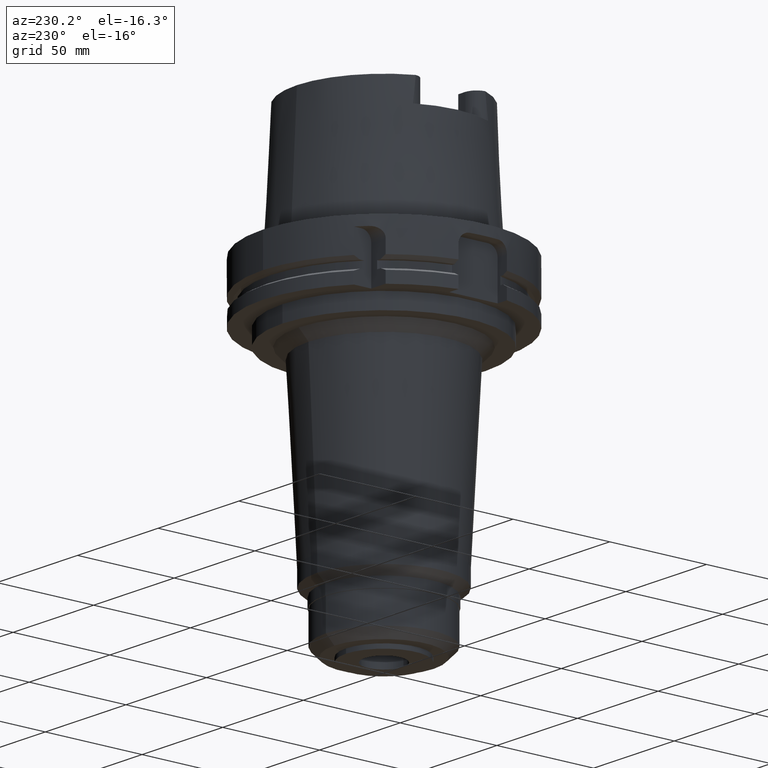
[diagram: clean part render]
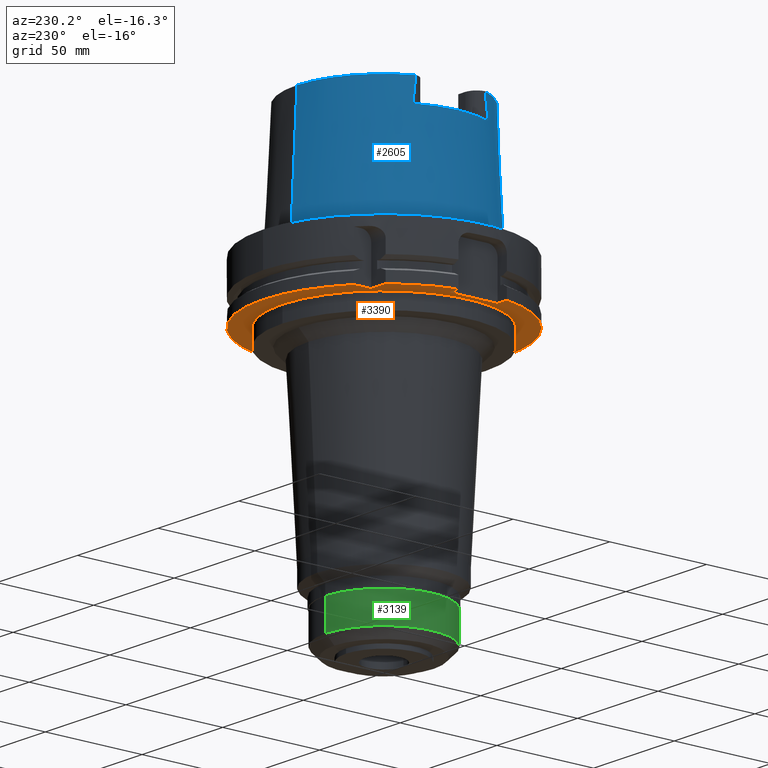
[diagram: same view with three faces highlighted in distinct colors, each labeled with its STEP entity id]
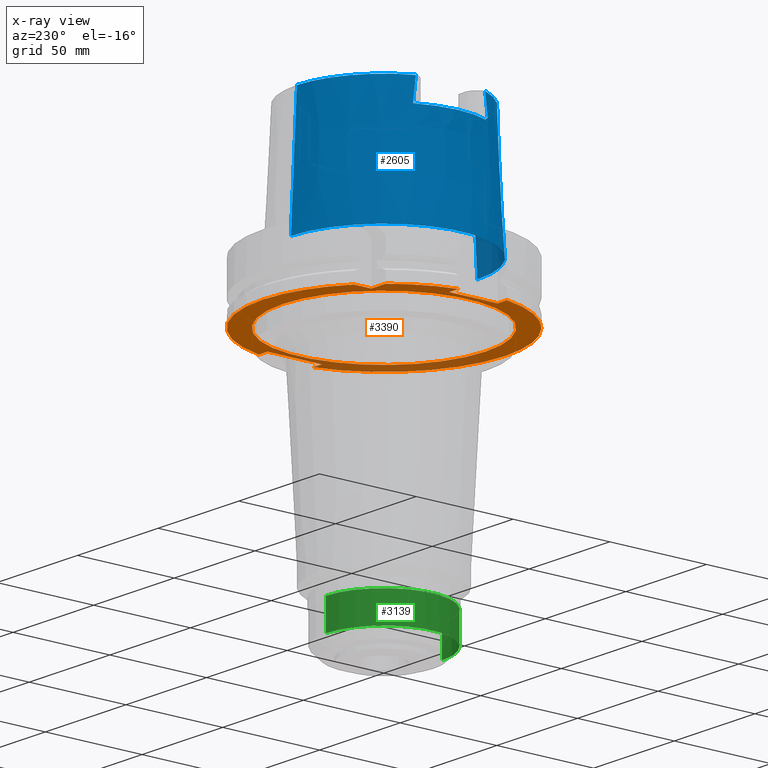
[diagram: x-ray of the same camera — body ghosted, the three highlighted faces saturated]
A machine part, auxiliary view with three faces highlighted in distinct colors.
The next image is the same camera in x-ray (body ghosted, the three faces saturated) — at least one of them is partly hidden behind the body in this view.
Their STEP definitions:

[orange] entity #3390 — the highlighted planar face has unit normal (0, 0, -1).
#1069=DIRECTION('',(-1.192782969819E-14,-1.E0,0.E0));
#1070=VECTOR('',#1069,8.935524153250E0);
#1071=CARTESIAN_POINT('',(-3.95E1,4.843552415325E1,-2.9E1));
#1072=LINE('',#1071,#1070);
#1076=DIRECTION('',(-1.E0,-1.192782969819E-14,0.E0));
#1077=VECTOR('',#1076,8.935524153250E0);
#1078=CARTESIAN_POINT('',(-3.95E1,3.95E1,-2.9E1));
#1079=LINE('',#1078,#1077);
#1083=CARTESIAN_POINT('',(0.E0,1.524930194298E-14,-2.9E1));
#1084=DIRECTION('',(0.E0,0.E0,1.E0));
#1085=DIRECTION('',(-7.749683864520E-1,6.32E-1,0.E0));
#1086=AXIS2_PLACEMENT_3D('',#1083,#1084,#1085);
#1091=DIRECTION('',(0.E0,-1.E0,0.E0));
#1092=VECTOR('',#1091,2.5E1);
#1093=CARTESIAN_POINT('',(-5.55E1,1.25E1,-2.9E1));
#1094=LINE('',#1093,#1092);
#1098=DIRECTION('',(-1.E0,0.E0,0.E0));
#1099=VECTOR('',#1098,5.737243569580E0);
#1100=CARTESIAN_POINT('',(-5.55E1,-1.25E1,-2.9E1));
#1101=LINE('',#1100,#1099);
#1105=CARTESIAN_POINT('',(0.E0,1.524930194298E-14,-2.9E1));
#1106=DIRECTION('',(0.E0,0.E0,1.E0));
#1107=DIRECTION('',(-9.797958971133E-1,-2.E-1,0.E0));
#1108=AXIS2_PLACEMENT_3D('',#1105,#1106,#1107);
#1113=CARTESIAN_POINT('',(0.E0,1.524930194298E-14,-2.9E1));
#1114=DIRECTION('',(0.E0,0.E0,1.E0));
#1115=DIRECTION('',(0.E0,-1.E0,0.E0));
#1116=AXIS2_PLACEMENT_3D('',#1113,#1114,#1115);
#1121=DIRECTION('',(1.E0,1.345769261679E-14,0.E0));
#1122=VECTOR('',#1121,5.411821512741E0);
#1123=CARTESIAN_POINT('',(5.55E1,1.4E1,-2.9E1));
#1124=LINE('',#1123,#1122);
#1128=CARTESIAN_POINT('',(0.E0,1.524930194298E-14,-2.9E1));
#1129=DIRECTION('',(0.E0,0.E0,1.E0));
#1130=DIRECTION('',(9.745891442039E-1,2.24E-1,0.E0));
#1131=AXIS2_PLACEMENT_3D('',#1128,#1129,#1130);
#1136=CARTESIAN_POINT('',(0.E0,1.524930194298E-14,-2.9E1));
#1137=DIRECTION('',(0.E0,0.E0,1.E0));
#1138=DIRECTION('',(0.E0,1.E0,0.E0));
#1139=AXIS2_PLACEMENT_3D('',#1136,#1137,#1138);
#1144=CARTESIAN_POINT('',(0.E0,1.524930194298E-14,-2.9E1));
#1145=DIRECTION('',(0.E0,0.E0,-1.E0));
#1146=DIRECTION('',(0.E0,-1.E0,0.E0));
#1147=AXIS2_PLACEMENT_3D('',#1144,#1145,#1146);
#1152=CARTESIAN_POINT('',(0.E0,1.524930194298E-14,-2.9E1));
#1153=DIRECTION('',(0.E0,0.E0,-1.E0));
#1154=DIRECTION('',(0.E0,1.E0,0.E0));
#1155=AXIS2_PLACEMENT_3D('',#1152,#1153,#1154);
#1206=DIRECTION('',(0.E0,-1.E0,0.E0));
#1207=VECTOR('',#1206,2.8E1);
#1208=CARTESIAN_POINT('',(5.55E1,1.4E1,-2.9E1));
#1209=LINE('',#1208,#1207);
#1250=DIRECTION('',(1.E0,-1.116003777978E-14,0.E0));
#1251=VECTOR('',#1250,5.411821512741E0);
#1252=CARTESIAN_POINT('',(5.55E1,-1.4E1,-2.9E1));
#1253=LINE('',#1252,#1251);
#1308=DIRECTION('',(-1.E0,0.E0,0.E0));
#1309=VECTOR('',#1308,5.737243569580E0);
#1310=CARTESIAN_POINT('',(-5.55E1,1.25E1,-2.9E1));
#1311=LINE('',#1310,#1309);
#2289=CARTESIAN_POINT('',(0.E0,5.25E1,-2.9E1));
#2290=VERTEX_POINT('',#2289);
#2291=CARTESIAN_POINT('',(0.E0,-5.25E1,-2.9E1));
#2292=VERTEX_POINT('',#2291);
#2293=CARTESIAN_POINT('',(-3.95E1,4.843552415325E1,-2.9E1));
#2294=CARTESIAN_POINT('',(-3.95E1,3.95E1,-2.9E1));
#2295=VERTEX_POINT('',#2293);
#2296=VERTEX_POINT('',#2294);
#2297=CARTESIAN_POINT('',(-4.843552415325E1,3.95E1,-2.9E1));
#2298=VERTEX_POINT('',#2297);
#2299=CARTESIAN_POINT('',(-6.123724356958E1,1.25E1,-2.9E1));
#2300=VERTEX_POINT('',#2299);
#2301=CARTESIAN_POINT('',(-5.55E1,1.25E1,-2.9E1));
#2302=VERTEX_POINT('',#2301);
#2303=CARTESIAN_POINT('',(-5.55E1,-1.25E1,-2.9E1));
#2304=VERTEX_POINT('',#2303);
#2305=CARTESIAN_POINT('',(-6.123724356958E1,-1.25E1,-2.9E1));
#2306=VERTEX_POINT('',#2305);
#2307=CARTESIAN_POINT('',(-7.184152362184E-14,-6.25E1,-2.9E1));
#2308=CARTESIAN_POINT('',(6.091182151274E1,-1.4E1,-2.9E1));
#2309=VERTEX_POINT('',#2307);
#2310=VERTEX_POINT('',#2308);
#2311=CARTESIAN_POINT('',(5.55E1,-1.4E1,-2.9E1));
#2312=VERTEX_POINT('',#2311);
#2313=CARTESIAN_POINT('',(5.55E1,1.4E1,-2.9E1));
#2314=VERTEX_POINT('',#2313);
#2315=CARTESIAN_POINT('',(6.091182151274E1,1.4E1,-2.9E1));
#2316=VERTEX_POINT('',#2315);
#2317=CARTESIAN_POINT('',(-1.590763653927E-14,6.25E1,-2.9E1));
#2318=VERTEX_POINT('',#2317);
#3353=CARTESIAN_POINT('',(0.E0,0.E0,-2.9E1));
#3354=DIRECTION('',(0.E0,0.E0,-1.E0));
#3355=DIRECTION('',(0.E0,-1.E0,0.E0));
#3356=AXIS2_PLACEMENT_3D('',#3353,#3354,#3355);
#3357=PLANE('',#3356);
#3359=ORIENTED_EDGE('',*,*,#3358,.T.);
#3361=ORIENTED_EDGE('',*,*,#3360,.T.);
#3363=ORIENTED_EDGE('',*,*,#3362,.T.);
#3365=ORIENTED_EDGE('',*,*,#3364,.F.);
#3367=ORIENTED_EDGE('',*,*,#3366,.T.);
#3369=ORIENTED_EDGE('',*,*,#3368,.T.);
#3371=ORIENTED_EDGE('',*,*,#3370,.T.);
#3373=ORIENTED_EDGE('',*,*,#3372,.T.);
#3375=ORIENTED_EDGE('',*,*,#3374,.F.);
#3377=ORIENTED_EDGE('',*,*,#3376,.F.);
#3379=ORIENTED_EDGE('',*,*,#3378,.T.);
#3381=ORIENTED_EDGE('',*,*,#3380,.T.);
#3383=ORIENTED_EDGE('',*,*,#3382,.T.);
#3384=EDGE_LOOP('',(#3359,#3361,#3363,#3365,#3367,#3369,#3371,#3373,#3375,#3377,
#3379,#3381,#3383));
#3385=FACE_OUTER_BOUND('',#3384,.F.);
#3386=ORIENTED_EDGE('',*,*,#3346,.T.);
#3387=ORIENTED_EDGE('',*,*,#3335,.T.);
#3388=EDGE_LOOP('',(#3386,#3387));
#3389=FACE_BOUND('',#3388,.F.);
#1087=CIRCLE('',#1086,6.25E1);
#1109=CIRCLE('',#1108,6.25E1);
#1117=CIRCLE('',#1116,6.25E1);
#1132=CIRCLE('',#1131,6.25E1);
#1140=CIRCLE('',#1139,6.25E1);
#1148=CIRCLE('',#1147,5.25E1);
#1156=CIRCLE('',#1155,5.25E1);
#3335=EDGE_CURVE('',#2290,#2292,#1156,.T.);
#3346=EDGE_CURVE('',#2292,#2290,#1148,.T.);
#3358=EDGE_CURVE('',#2295,#2296,#1072,.T.);
#3360=EDGE_CURVE('',#2296,#2298,#1079,.T.);
#3362=EDGE_CURVE('',#2298,#2300,#1087,.T.);
#3364=EDGE_CURVE('',#2302,#2300,#1311,.T.);
#3366=EDGE_CURVE('',#2302,#2304,#1094,.T.);
#3368=EDGE_CURVE('',#2304,#2306,#1101,.T.);
#3370=EDGE_CURVE('',#2306,#2309,#1109,.T.);
#3372=EDGE_CURVE('',#2309,#2310,#1117,.T.);
#3374=EDGE_CURVE('',#2312,#2310,#1253,.T.);
#3376=EDGE_CURVE('',#2314,#2312,#1209,.T.);
#3378=EDGE_CURVE('',#2314,#2316,#1124,.T.);
#3380=EDGE_CURVE('',#2316,#2318,#1132,.T.);
#3382=EDGE_CURVE('',#2318,#2295,#1140,.T.);
#3390=ADVANCED_FACE('',(#3385,#3389),#3357,.T.);

[blue] entity #2605 — the highlighted conical surface has half-angle 2.868 deg.
#26=CARTESIAN_POINT('',(0.E0,0.E0,6.3E1));
#27=DIRECTION('',(0.E0,0.E0,-1.E0));
#28=DIRECTION('',(-9.167715827925E-1,3.994118989014E-1,0.E0));
#29=AXIS2_PLACEMENT_3D('',#26,#27,#28);
#124=CARTESIAN_POINT('',(0.E0,0.E0,5.1E1));
#125=DIRECTION('',(0.E0,0.E0,-1.E0));
#126=DIRECTION('',(-9.050174596142E-1,-4.253744207089E-1,0.E0));
#127=AXIS2_PLACEMENT_3D('',#124,#125,#126);
#201=CARTESIAN_POINT('',(0.E0,0.E0,6.3E1));
#202=DIRECTION('',(0.E0,0.E0,-1.E0));
#203=DIRECTION('',(0.E0,-1.E0,0.E0));
#204=AXIS2_PLACEMENT_3D('',#201,#202,#203);
#223=CARTESIAN_POINT('',(-4.125000557247E1,-1.838997697027E1,5.929550559035E1));
#224=CARTESIAN_POINT('',(-4.125000529617E1,-1.833943932404E1,5.970626997425E1));
#225=CARTESIAN_POINT('',(-4.124870490780E1,-1.824115072659E1,6.052847239869E1));
#226=CARTESIAN_POINT('',(-4.124335781329E1,-1.809921929985E1,6.176328280679E1));
#227=CARTESIAN_POINT('',(-4.123781014869E1,-1.800916346352E1,6.258761057880E1));
#228=CARTESIAN_POINT('',(-4.123459521485E1,-1.796481723310E1,6.3E1));
#233=DIRECTION('',(0.E0,-5.003514210027E-2,-9.987474578466E-1));
#234=VECTOR('',#233,6.307900911792E1);
#235=CARTESIAN_POINT('',(0.E0,-4.497805646301E1,6.3E1));
#236=LINE('',#235,#234);
#240=CARTESIAN_POINT('',(-4.123459520422E1,1.796481683959E1,6.3E1));
#241=CARTESIAN_POINT('',(-4.123781014555E1,1.800916306053E1,6.258761051959E1));
#242=CARTESIAN_POINT('',(-4.124335744928E1,1.809921999184E1,6.176329837202E1));
#243=CARTESIAN_POINT('',(-4.124870613251E1,1.824114781340E1,6.052841788553E1));
#244=CARTESIAN_POINT('',(-4.125000266560E1,1.833944504032E1,5.970638672266E1));
#245=CARTESIAN_POINT('',(-4.125000294560E1,1.838998263117E1,5.929562233148E1));
#250=CARTESIAN_POINT('',(-4.125000557247E1,-1.838997697027E1,5.929550559035E1));
#251=CARTESIAN_POINT('',(-4.125000557247E1,-1.850334030698E1,5.837411226099E1));
#252=CARTESIAN_POINT('',(-4.124999797866E1,-1.872833004943E1,5.653102419833E1));
#253=CARTESIAN_POINT('',(-4.124999871600E1,-1.906112815384E1,5.376585443539E1));
#254=CARTESIAN_POINT('',(-4.125000434357E1,-1.927963070245E1,5.192200298503E1));
#255=CARTESIAN_POINT('',(-4.125000434357E1,-1.938821850088E1,5.1E1));
#270=DIRECTION('',(0.E0,5.003514210027E-2,-9.987474578466E-1));
#271=VECTOR('',#270,6.307900911792E1);
#272=CARTESIAN_POINT('',(0.E0,4.497805646301E1,6.3E1));
#273=LINE('',#272,#271);
#1886=CARTESIAN_POINT('',(0.E0,0.E0,-1.477928890381E-12));
#1887=DIRECTION('',(0.E0,0.E0,1.E0));
#1888=DIRECTION('',(0.E0,1.E0,0.E0));
#1889=AXIS2_PLACEMENT_3D('',#1886,#1887,#1888);
#2103=CARTESIAN_POINT('',(-4.124999898330E1,1.938824386379E1,5.1E1));
#2104=CARTESIAN_POINT('',(-4.124999898330E1,1.927965597327E1,5.192200539404E1));
#2105=CARTESIAN_POINT('',(-4.125000086721E1,1.906106419013E1,5.376583934197E1));
#2106=CARTESIAN_POINT('',(-4.124999848983E1,1.872826574507E1,5.653104337027E1));
#2107=CARTESIAN_POINT('',(-4.125000294560E1,1.850336695372E1,5.837405755875E1));
#2108=CARTESIAN_POINT('',(-4.125000294560E1,1.838998263117E1,5.929562233148E1));
#2117=CARTESIAN_POINT('',(-4.123460401453E1,1.796477094079E1,6.3E1));
#2118=VERTEX_POINT('',#2117);
#2119=CARTESIAN_POINT('',(0.E0,4.497805646301E1,6.3E1));
#2120=VERTEX_POINT('',#2119);
#2129=CARTESIAN_POINT('',(-4.123460401453E1,-1.796477094079E1,6.3E1));
#2131=VERTEX_POINT('',#2129);
#2143=CARTESIAN_POINT('',(0.E0,-4.497805646301E1,6.3E1));
#2144=VERTEX_POINT('',#2143);
#2159=CARTESIAN_POINT('',(-4.125000434357E1,-1.938821850088E1,5.1E1));
#2160=VERTEX_POINT('',#2159);
#2161=CARTESIAN_POINT('',(-4.125E1,1.938823905311E1,5.1E1));
#2162=VERTEX_POINT('',#2161);
#2165=VERTEX_POINT('',#223);
#2166=CARTESIAN_POINT('',(0.E0,-4.813422364777E1,-9.805489753489E-13));
#2167=VERTEX_POINT('',#2166);
#2168=CARTESIAN_POINT('',(0.E0,4.813422364777E1,-1.477928890381E-12));
#2169=VERTEX_POINT('',#2168);
#2170=VERTEX_POINT('',#245);
#2582=CARTESIAN_POINT('',(0.E0,0.E0,3.15E1));
#2583=DIRECTION('',(0.E0,0.E0,-1.E0));
#2584=DIRECTION('',(0.E0,-1.E0,0.E0));
#2585=AXIS2_PLACEMENT_3D('',#2582,#2583,#2584);
#2586=CONICAL_SURFACE('',#2585,4.655614005539E1,2.868E0);
#2587=ORIENTED_EDGE('',*,*,#2521,.F.);
#2589=ORIENTED_EDGE('',*,*,#2588,.F.);
#2590=ORIENTED_EDGE('',*,*,#2573,.T.);
#2591=ORIENTED_EDGE('',*,*,#2562,.F.);
#2593=ORIENTED_EDGE('',*,*,#2592,.T.);
#2595=ORIENTED_EDGE('',*,*,#2594,.F.);
#2597=ORIENTED_EDGE('',*,*,#2596,.F.);
#2598=ORIENTED_EDGE('',*,*,#2457,.F.);
#2600=ORIENTED_EDGE('',*,*,#2599,.T.);
#2602=ORIENTED_EDGE('',*,*,#2601,.F.);
#2603=EDGE_LOOP('',(#2587,#2589,#2590,#2591,#2593,#2595,#2597,#2598,#2600,
#2602));
#2604=FACE_OUTER_BOUND('',#2603,.F.);
#30=CIRCLE('',#29,4.497805646301E1);
#128=CIRCLE('',#127,4.557923116487E1);
#205=CIRCLE('',#204,4.497805646301E1);
#229=B_SPLINE_CURVE_WITH_KNOTS('',3,(#223,#224,#225,#226,#227,#228),
.UNSPECIFIED.,.F.,.F.,(4,1,1,4),(0.E0,3.333333333333E-1,6.666666666667E-1,1.E0),
.UNSPECIFIED.);
#246=B_SPLINE_CURVE_WITH_KNOTS('',3,(#240,#241,#242,#243,#244,#245),
.UNSPECIFIED.,.F.,.F.,(4,1,1,4),(0.E0,3.333333333333E-1,6.666666666667E-1,1.E0),
.UNSPECIFIED.);
#256=B_SPLINE_CURVE_WITH_KNOTS('',3,(#250,#251,#252,#253,#254,#255),
.UNSPECIFIED.,.F.,.F.,(4,1,1,4),(0.E0,3.333333333333E-1,6.666666666667E-1,1.E0),
.UNSPECIFIED.);
#1890=CIRCLE('',#1889,4.813422364777E1);
#2109=B_SPLINE_CURVE_WITH_KNOTS('',3,(#2103,#2104,#2105,#2106,#2107,#2108),
.UNSPECIFIED.,.F.,.F.,(4,1,1,4),(0.E0,3.333333333333E-1,6.666666666667E-1,1.E0),
.UNSPECIFIED.);
#2457=EDGE_CURVE('',#2118,#2120,#30,.T.);
#2521=EDGE_CURVE('',#2160,#2162,#128,.T.);
#2562=EDGE_CURVE('',#2144,#2131,#205,.T.);
#2573=EDGE_CURVE('',#2165,#2131,#229,.T.);
#2588=EDGE_CURVE('',#2165,#2160,#256,.T.);
#2592=EDGE_CURVE('',#2144,#2167,#236,.T.);
#2594=EDGE_CURVE('',#2169,#2167,#1890,.T.);
#2596=EDGE_CURVE('',#2120,#2169,#273,.T.);
#2599=EDGE_CURVE('',#2118,#2170,#246,.T.);
#2601=EDGE_CURVE('',#2162,#2170,#2109,.T.);
#2605=ADVANCED_FACE('',(#2604),#2586,.T.);

[green] entity #3139 — the highlighted cylindrical surface (partial cylindrical patch) has radius 30 mm, axis along (0, 0, -1).
#828=CARTESIAN_POINT('',(0.E0,-1.384463206436E-14,-1.609E2));
#829=DIRECTION('',(0.E0,0.E0,1.E0));
#830=DIRECTION('',(0.E0,1.E0,0.E0));
#831=AXIS2_PLACEMENT_3D('',#828,#829,#830);
#843=DIRECTION('',(0.E0,0.E0,-1.E0));
#844=VECTOR('',#843,1.55E1);
#845=CARTESIAN_POINT('',(0.E0,-3.E1,-1.454E2));
#846=LINE('',#845,#844);
#850=DIRECTION('',(0.E0,0.E0,-1.E0));
#851=VECTOR('',#850,1.55E1);
#852=CARTESIAN_POINT('',(0.E0,3.E1,-1.454E2));
#853=LINE('',#852,#851);
#873=CARTESIAN_POINT('',(0.E0,1.524930194298E-14,-1.454E2));
#874=DIRECTION('',(0.E0,0.E0,-1.E0));
#875=DIRECTION('',(0.E0,-1.E0,0.E0));
#876=AXIS2_PLACEMENT_3D('',#873,#874,#875);
#2253=CARTESIAN_POINT('',(0.E0,3.E1,-1.609E2));
#2254=VERTEX_POINT('',#2253);
#2255=CARTESIAN_POINT('',(0.E0,-3.E1,-1.609E2));
#2256=VERTEX_POINT('',#2255);
#2257=CARTESIAN_POINT('',(0.E0,3.E1,-1.454E2));
#2258=VERTEX_POINT('',#2257);
#2259=CARTESIAN_POINT('',(0.E0,-3.E1,-1.454E2));
#2260=VERTEX_POINT('',#2259);
#3125=CARTESIAN_POINT('',(0.E0,1.524930194298E-14,7.452E1));
#3126=DIRECTION('',(0.E0,0.E0,-1.E0));
#3127=DIRECTION('',(0.E0,-1.E0,0.E0));
#3128=AXIS2_PLACEMENT_3D('',#3125,#3126,#3127);
#3129=CYLINDRICAL_SURFACE('',#3128,3.E1);
#3131=ORIENTED_EDGE('',*,*,#3130,.F.);
#3133=ORIENTED_EDGE('',*,*,#3132,.F.);
#3135=ORIENTED_EDGE('',*,*,#3134,.T.);
#3136=ORIENTED_EDGE('',*,*,#3118,.F.);
#3137=EDGE_LOOP('',(#3131,#3133,#3135,#3136));
#3138=FACE_OUTER_BOUND('',#3137,.F.);
#832=CIRCLE('',#831,3.E1);
#877=CIRCLE('',#876,3.E1);
#3118=EDGE_CURVE('',#2254,#2256,#832,.T.);
#3130=EDGE_CURVE('',#2258,#2254,#853,.T.);
#3132=EDGE_CURVE('',#2260,#2258,#877,.T.);
#3134=EDGE_CURVE('',#2260,#2256,#846,.T.);
#3139=ADVANCED_FACE('',(#3138),#3129,.T.);